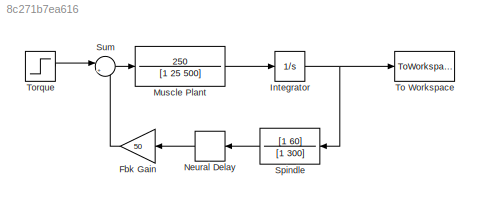
MODEL slx_8c271b7ea616
KIND model
BLOCK [Gain] Fbk Gain
  Gain = 50
  OutDataTypeStr = Inherit: Inherit via internal rule
  ParamDataTypeStr = Inherit: Inherit via internal rule
  SaturateOnIntegerOverflow = off
BLOCK [Integrator] Integrator
  Ports = [1, 1]
BLOCK [TransferFcn] Muscle Plant
  Denominator = [1 25 500]
  Numerator = 250
BLOCK [TransportDelay] Neural Delay
  DelayTime = .03
  Ports = [1, 1]
BLOCK [TransferFcn] Spindle
  Denominator = [1 300]
  Numerator = [1 60]
BLOCK [Sum] Sum
  IconShape = round
  InputSameDT = off
  Inputs = |+-
  OutDataTypeStr = Inherit: Inherit via internal rule
  Ports = [2, 1]
  SaturateOnIntegerOverflow = off
BLOCK [ToWorkspace] To Workspace
  MaxDataPoints = inf
  Ports = [1]
  SampleTime = -1
  VariableName = simout
BLOCK [Step] Torque
  After = 5
  SampleTime = 0
  Time = 0
LINE Fbk Gain:1 -> Sum:2
NET Integrator:1 -> Spindle:1, To Workspace:1
LINE Muscle Plant:1 -> Integrator:1
LINE Neural Delay:1 -> Fbk Gain:1
LINE Spindle:1 -> Neural Delay:1
LINE Sum:1 -> Muscle Plant:1
LINE Torque:1 -> Sum:1
note: NET lines group one-source signal fan-out (src -> all destinations, sorted); 1:1 wires keep LINE
